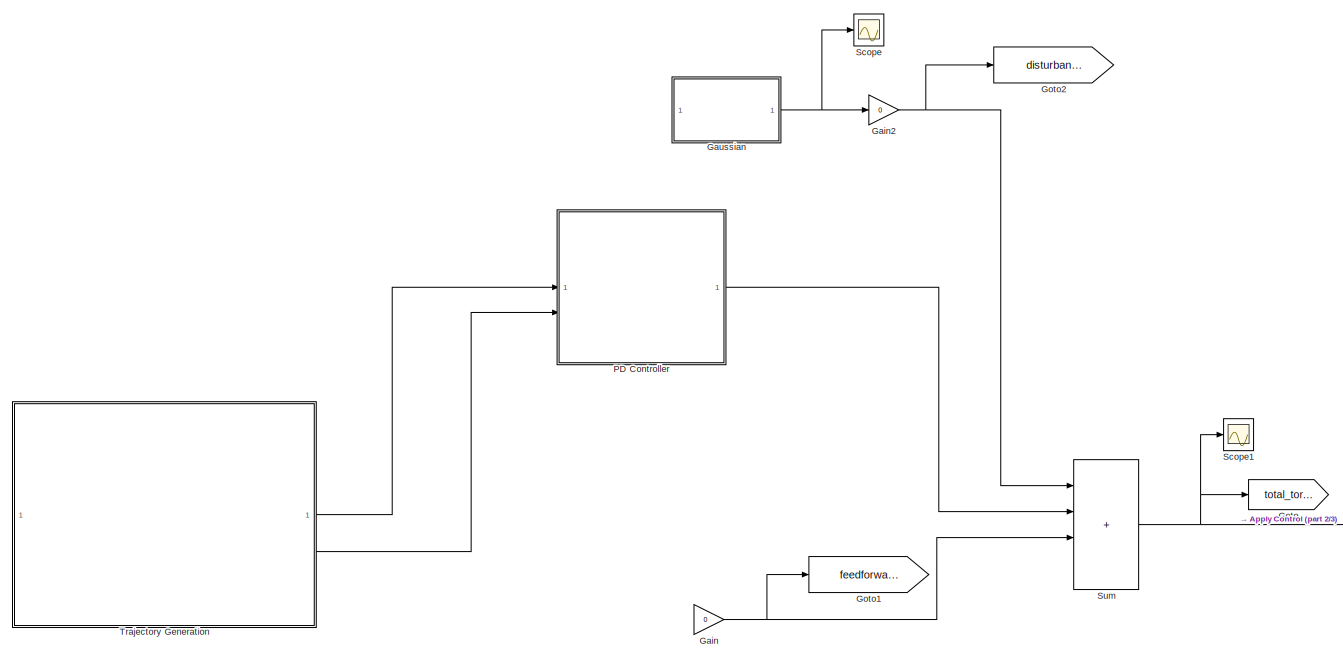
[diagram: root canvas - part 1/3, middle left region]
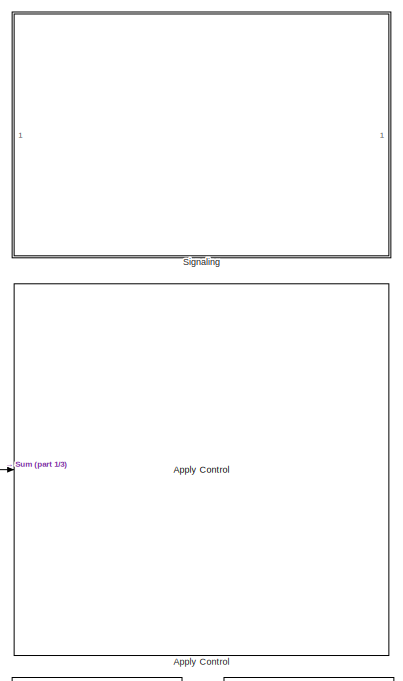
[diagram: root canvas - part 2/3, middle right region]
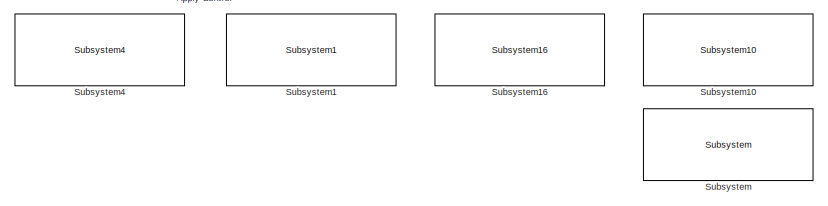
[diagram: root canvas - part 3/3, bottom right region]
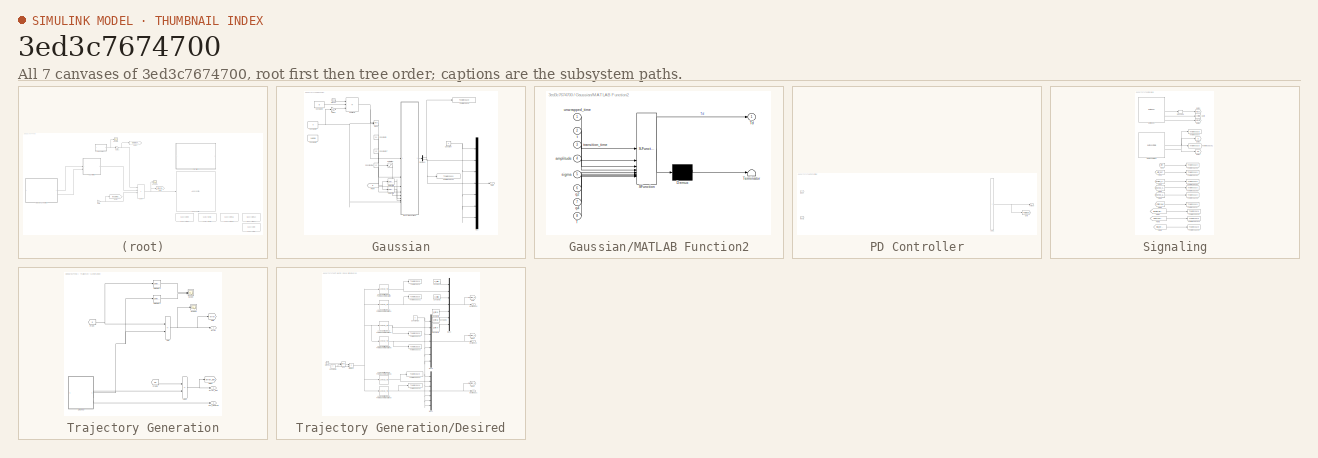
[diagram: thumbnail index - all 7 canvases of the model, root first then tree order]
MODEL slx_3ed3c7674700
KIND model
CONFIG AbsTol = auto
CONFIG EnableMultiTasking = on
CONFIG FixedStep = 0.001
CONFIG MaxStep = auto
CONFIG MinStep = auto
CONFIG PreLoadFcn = demos_common_configs();\n\ncollision_behavior = ones(1,52)*100;
CONFIG RelTol = 1e-3
CONFIG SampleTimeConstraint = Unconstrained
CONFIG SolverName = FixedStepDiscrete
CONFIG StartTime = 0.0
CONFIG StopTime = inf
BLOCK [Reference] Apply Control  REF=franka_simulink_library/Apply Control
  SourceBlock = franka_simulink_library/Apply Control
  UserDataPersistent = on
BLOCK [Gain] Gain
  Gain = 0
BLOCK [Gain] Gain2
  Gain = 0
BLOCK [SubSystem] Gaussian
BLOCK [Clock] Gaussian/Clock1
BLOCK [Constant] Gaussian/Constant
  Value = 0
BLOCK [Constant] Gaussian/Constant1
  Value = 50
BLOCK [Constant] Gaussian/Constant17
  Value = 15
BLOCK [Constant] Gaussian/Constant18
  Value = 12
BLOCK [Constant] Gaussian/Constant2
  Value = 0
BLOCK [Constant] Gaussian/Constant8
  Value = T
BLOCK [Constant] Gaussian/Constant9
  Value = 1.4838
BLOCK [Demux] Gaussian/Demux1
  Outputs = 2
BLOCK [From] Gaussian/From7
  GotoTag = q
  TagVisibility = global
BLOCK [Gain] Gaussian/Gain3
  Gain = 0.5
BLOCK [SubSystem] Gaussian/MATLAB Function2
  ErrorFcn = Stateflow.Translate.translate
  PermitHierarchicalResolution = ExplicitOnly
  SFBlockType = MATLAB Function
  TreatAsAtomicUnit = on
BLOCK [Demux] Gaussian/MATLAB Function2/ Demux 
  Outputs = 1
BLOCK [S-Function] Gaussian/MATLAB Function2/ SFunction 
  EnableBusSupport = off
  FunctionName = sf_sfun
  PortCounts = [8 2]
  SFcnIsStateOwnerBlock = off
  SFunctionDeploymentMode = off
  Tag = Stateflow S-Function 24
BLOCK [Terminator] Gaussian/MATLAB Function2/ Terminator 
BLOCK [Inport] Gaussian/MATLAB Function2/T
  Port = 8
BLOCK [Outport] Gaussian/MATLAB Function2/Td
BLOCK [Inport] Gaussian/MATLAB Function2/amplitude
  Port = 4
BLOCK [Inport] Gaussian/MATLAB Function2/q2
  Port = 6
BLOCK [Inport] Gaussian/MATLAB Function2/q4
  Port = 7
BLOCK [Inport] Gaussian/MATLAB Function2/sigma
  Port = 5
BLOCK [Inport] Gaussian/MATLAB Function2/t
  Port = 2
BLOCK [Inport] Gaussian/MATLAB Function2/transition_time
  Port = 3
BLOCK [Inport] Gaussian/MATLAB Function2/unwrapped_time
BLOCK [Math] Gaussian/Mod2
  Operator = mod
BLOCK [Mux] Gaussian/Mux
  DisplayOption = bar
  Inputs = 7
BLOCK [Outport] Gaussian/Out2
BLOCK [Saturate] Gaussian/Saturation
  LowerLimit = 12
  UpperLimit = inf
BLOCK [Selector] Gaussian/Selector3
  IndexOptions = Index vector (dialog)
  Indices = [2]
  InputPortWidth = 7
  OutputSizes = 1
BLOCK [Selector] Gaussian/Selector4
  IndexOptions = Index vector (dialog)
  Indices = [4]
  InputPortWidth = 7
  OutputSizes = 1
BLOCK [Sum] Gaussian/Subtract1
  IconShape = rectangular
  Inputs = +-+
BLOCK [ToWorkspace] Gaussian/To Workspace
  FixptAsFi = on
  MaxDataPoints = inf
  SampleTime = -1
  SaveFormat = Structure With Time
  VariableName = torque_disturbance_2
BLOCK [ToWorkspace] Gaussian/To Workspace1
  FixptAsFi = on
  MaxDataPoints = inf
  SampleTime = -1
  SaveFormat = Structure With Time
  VariableName = torque_disturbance_4
BLOCK [Goto] Goto
  GotoTag = total_torque
  TagVisibility = global
BLOCK [Goto] Goto1
  GotoTag = feedforward_torque
  TagVisibility = global
BLOCK [Goto] Goto2
  GotoTag = disturbance_torque
  TagVisibility = global
BLOCK [SubSystem] PD Controller
BLOCK [Sum] PD Controller/Add1
  IconShape = rectangular
BLOCK [Goto] PD Controller/Goto
  GotoTag = PDtorque
  TagVisibility = global
BLOCK [Inport] PD Controller/Input
BLOCK [Inport] PD Controller/Input1
  Port = 2
BLOCK [Outport] PD Controller/Torque
BLOCK [Scope] Scope
  Floating = off
  NumInputPorts = 1
  ScopeSpecificationString = Simulink.scopes.TimeScopeBlockCfg('CurrentConfiguration', extmgr.ConfigurationSet(extmgr.Configuration('Core','General UI',true),extmgr.Configuration('Core','Source UI',true),extmgr.Configuration('Sources','WiredSimulink',true,'DataLoggingVariableName','ScopeData3'),extmgr.Configuration('Visuals','Time Domain',true,'SerializedDisplays',{struct('MinYLimReal','-0.67295','MaxYLimReal','0.133','YLabel...<+1473ch>
BLOCK [Scope] Scope1
  Floating = off
  NumInputPorts = 1
  ScopeSpecificationString = Simulink.scopes.TimeScopeBlockCfg('CurrentConfiguration', extmgr.ConfigurationSet(extmgr.Configuration('Core','General UI',true),extmgr.Configuration('Core','Source UI',true),extmgr.Configuration('Sources','WiredSimulink',true,'DataLoggingVariableName','ScopeData2'),extmgr.Configuration('Visuals','Time Domain',true,'SerializedDisplays',{struct('MinYLimReal','-0.67295','MaxYLimReal','0.133','YLabel...<+1473ch>
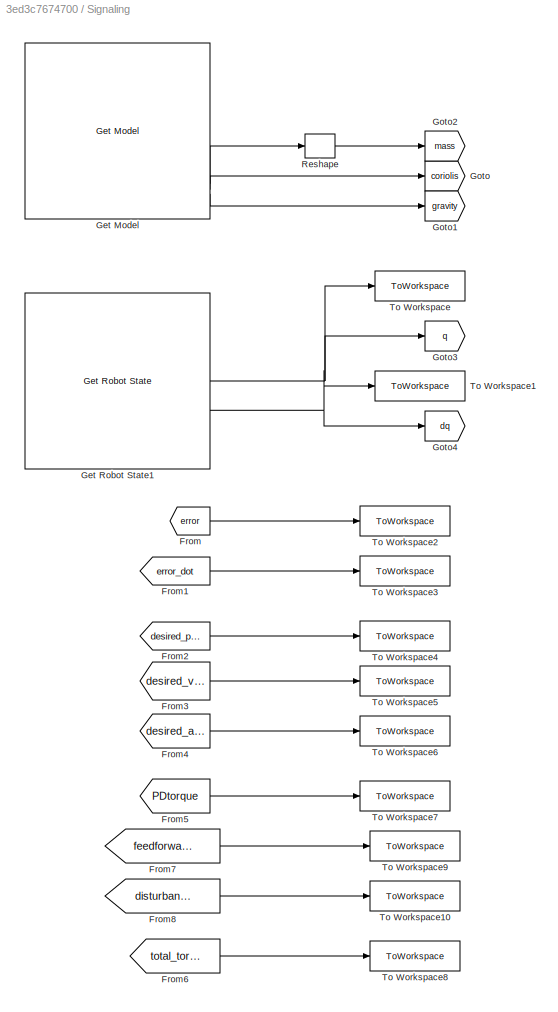
BLOCK [SubSystem] Signaling
BLOCK [From] Signaling/From
  GotoTag = error
  TagVisibility = global
BLOCK [From] Signaling/From1
  GotoTag = error_dot
  TagVisibility = global
BLOCK [From] Signaling/From2
  GotoTag = desired_pos
  TagVisibility = global
BLOCK [From] Signaling/From3
  GotoTag = desired_vel
  TagVisibility = global
BLOCK [From] Signaling/From4
  GotoTag = desired_acc
  TagVisibility = global
BLOCK [From] Signaling/From5
  GotoTag = PDtorque
  TagVisibility = global
BLOCK [From] Signaling/From6
  GotoTag = total_torque
  TagVisibility = global
BLOCK [From] Signaling/From7
  GotoTag = feedforward_torque
  TagVisibility = global
BLOCK [From] Signaling/From8
  GotoTag = disturbance_torque
  TagVisibility = global
BLOCK [Reference] Signaling/Get Model  REF=franka_simulink_library/Get Model
  SourceBlock = franka_simulink_library/Get Model
BLOCK [Reference] Signaling/Get Robot State1  REF=franka_simulink_library/Get Robot State
  SourceBlock = franka_simulink_library/Get Robot State
BLOCK [Goto] Signaling/Goto
  GotoTag = coriolis
  TagVisibility = global
BLOCK [Goto] Signaling/Goto1
  GotoTag = gravity
  TagVisibility = global
BLOCK [Goto] Signaling/Goto2
  GotoTag = mass
  TagVisibility = global
BLOCK [Goto] Signaling/Goto3
  GotoTag = q
  TagVisibility = global
BLOCK [Goto] Signaling/Goto4
  GotoTag = dq
  TagVisibility = global
BLOCK [Reshape] Signaling/Reshape
  OutputDimensionality = Customize
  OutputDimensions = [7,7]
BLOCK [ToWorkspace] Signaling/To Workspace
  FixptAsFi = on
  MaxDataPoints = inf
  SampleTime = -1
  SaveFormat = Structure With Time
  VariableName = q
BLOCK [ToWorkspace] Signaling/To Workspace1
  FixptAsFi = on
  MaxDataPoints = inf
  SampleTime = -1
  SaveFormat = Structure With Time
  VariableName = dq
BLOCK [ToWorkspace] Signaling/To Workspace10
  FixptAsFi = on
  MaxDataPoints = inf
  SampleTime = -1
  SaveFormat = Structure With Time
  VariableName = disturbance_torque
BLOCK [ToWorkspace] Signaling/To Workspace2
  FixptAsFi = on
  MaxDataPoints = inf
  SampleTime = -1
  SaveFormat = Structure With Time
  VariableName = error
BLOCK [ToWorkspace] Signaling/To Workspace3
  FixptAsFi = on
  MaxDataPoints = inf
  SampleTime = -1
  SaveFormat = Structure With Time
  VariableName = error_dot
BLOCK [ToWorkspace] Signaling/To Workspace4
  FixptAsFi = on
  MaxDataPoints = inf
  SampleTime = -1
  SaveFormat = Structure With Time
  VariableName = desired_pos
BLOCK [ToWorkspace] Signaling/To Workspace5
  FixptAsFi = on
  MaxDataPoints = inf
  SampleTime = -1
  SaveFormat = Structure With Time
  VariableName = desired_vel
BLOCK [ToWorkspace] Signaling/To Workspace6
  FixptAsFi = on
  MaxDataPoints = inf
  SampleTime = -1
  SaveFormat = Structure With Time
  VariableName = desired_acc
BLOCK [ToWorkspace] Signaling/To Workspace7
  FixptAsFi = on
  MaxDataPoints = inf
  SampleTime = -1
  SaveFormat = Structure With Time
  VariableName = PDtorque
BLOCK [ToWorkspace] Signaling/To Workspace8
  FixptAsFi = on
  MaxDataPoints = inf
  SampleTime = -1
  SaveFormat = Structure With Time
  VariableName = total_torque
BLOCK [ToWorkspace] Signaling/To Workspace9
  FixptAsFi = on
  MaxDataPoints = inf
  SampleTime = -1
  SaveFormat = Structure With Time
  VariableName = feedforward_torque
BLOCK [Reference] Subsystem  REF=franka_simulink_library_misc/Subsystem
  SourceBlock = franka_simulink_library_misc/Subsystem
BLOCK [Reference] Subsystem1  REF=franka_simulink_library_misc/Subsystem1
  SourceBlock = franka_simulink_library_misc/Subsystem1
BLOCK [Reference] Subsystem10  REF=franka_simulink_library_misc/Subsystem10
  SourceBlock = franka_simulink_library_misc/Subsystem10
BLOCK [Reference] Subsystem16  REF=franka_simulink_library_misc/Subsystem16
  SourceBlock = franka_simulink_library_misc/Subsystem16
BLOCK [Reference] Subsystem4  REF=franka_simulink_library_misc/Subsystem4
  SourceBlock = franka_simulink_library_misc/Subsystem4
BLOCK [Sum] Sum
  IconShape = rectangular
  Inputs = ++++
BLOCK [SubSystem] Trajectory Generation
BLOCK [Sum] Trajectory Generation/Add
  IconShape = rectangular
  Inputs = -+
BLOCK [Sum] Trajectory Generation/Add2
  IconShape = rectangular
  Inputs = -+
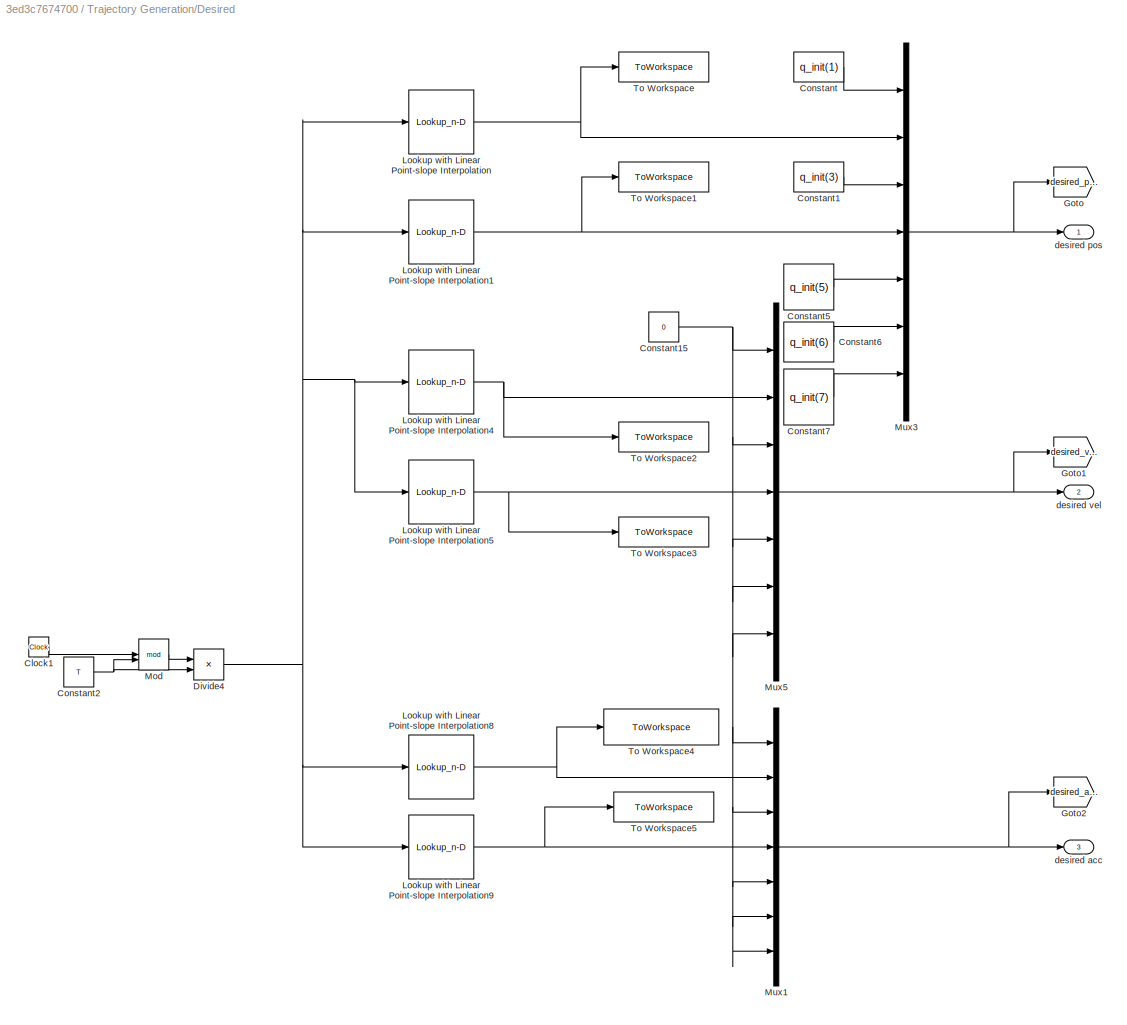
BLOCK [SubSystem] Trajectory Generation/Desired
BLOCK [Clock] Trajectory Generation/Desired/Clock1
BLOCK [Constant] Trajectory Generation/Desired/Constant
  Value = q_init(1)
BLOCK [Constant] Trajectory Generation/Desired/Constant1
  Value = q_init(3)
BLOCK [Constant] Trajectory Generation/Desired/Constant15
  Value = 0
BLOCK [Constant] Trajectory Generation/Desired/Constant2
  Value = T
BLOCK [Constant] Trajectory Generation/Desired/Constant5
  Value = q_init(5)
BLOCK [Constant] Trajectory Generation/Desired/Constant6
  Value = q_init(6)
BLOCK [Constant] Trajectory Generation/Desired/Constant7
  Value = q_init(7)
BLOCK [Product] Trajectory Generation/Desired/Divide4
  Inputs = */
BLOCK [Goto] Trajectory Generation/Desired/Goto
  GotoTag = desired_pos
  TagVisibility = global
BLOCK [Goto] Trajectory Generation/Desired/Goto1
  GotoTag = desired_vel
  TagVisibility = global
BLOCK [Goto] Trajectory Generation/Desired/Goto2
  GotoTag = desired_acc
  TagVisibility = global
BLOCK [Lookup_n-D] Trajectory Generation/Desired/Lookup with Linear Point-slope Interpolation
  BreakpointsForDimension1 = linspace(0,1,length(Q2_desired))
  InputPortMap = u0
  InternalRulePriority = Speed
  NumberOfTableDimensions = 1
  RndMeth = Simplest
  Table = Q2_desired
BLOCK [Lookup_n-D] Trajectory Generation/Desired/Lookup with Linear Point-slope Interpolation1
  BreakpointsForDimension1 = linspace(0,1,length(Q4_desired))
  InputPortMap = u0
  InternalRulePriority = Speed
  NumberOfTableDimensions = 1
  RndMeth = Simplest
  Table = Q4_desired
BLOCK [Lookup_n-D] Trajectory Generation/Desired/Lookup with Linear Point-slope Interpolation4
  BreakpointsForDimension1 = linspace(0,1,length(dQ2_desired))
  InputPortMap = u0
  InternalRulePriority = Speed
  NumberOfTableDimensions = 1
  RndMeth = Simplest
  Table = dQ2_desired
BLOCK [Lookup_n-D] Trajectory Generation/Desired/Lookup with Linear Point-slope Interpolation5
  BreakpointsForDimension1 = linspace(0,1,length(dQ4_desired))
  InputPortMap = u0
  InternalRulePriority = Speed
  NumberOfTableDimensions = 1
  RndMeth = Simplest
  Table = dQ4_desired
BLOCK [Lookup_n-D] Trajectory Generation/Desired/Lookup with Linear Point-slope Interpolation8
  BreakpointsForDimension1 = linspace(0,1,length(ddQ2_desired))
  InputPortMap = u0
  InternalRulePriority = Speed
  NumberOfTableDimensions = 1
  RndMeth = Simplest
  Table = ddQ2_desired
BLOCK [Lookup_n-D] Trajectory Generation/Desired/Lookup with Linear Point-slope Interpolation9
  BreakpointsForDimension1 = linspace(0,1,length(ddQ2_desired))
  InputPortMap = u0
  InternalRulePriority = Speed
  NumberOfTableDimensions = 1
  RndMeth = Simplest
  Table = ddQ4_desired
BLOCK [Math] Trajectory Generation/Desired/Mod
  Operator = mod
BLOCK [Mux] Trajectory Generation/Desired/Mux1
  DisplayOption = bar
  Inputs = 7
BLOCK [Mux] Trajectory Generation/Desired/Mux3
  DisplayOption = bar
  Inputs = 7
BLOCK [Mux] Trajectory Generation/Desired/Mux5
  DisplayOption = bar
  Inputs = 7
BLOCK [ToWorkspace] Trajectory Generation/Desired/To Workspace
  FixptAsFi = on
  MaxDataPoints = inf
  SampleTime = -1
  SaveFormat = Structure With Time
  VariableName = pid_pos_desired_2
BLOCK [ToWorkspace] Trajectory Generation/Desired/To Workspace1
  FixptAsFi = on
  MaxDataPoints = inf
  SampleTime = -1
  SaveFormat = Structure With Time
  VariableName = pid_pos_desired_4
BLOCK [ToWorkspace] Trajectory Generation/Desired/To Workspace2
  FixptAsFi = on
  MaxDataPoints = inf
  SampleTime = -1
  SaveFormat = Structure With Time
  VariableName = pid_vel_desired_2
BLOCK [ToWorkspace] Trajectory Generation/Desired/To Workspace3
  FixptAsFi = on
  MaxDataPoints = inf
  SampleTime = -1
  SaveFormat = Structure With Time
  VariableName = pid_vel_desired_4
BLOCK [ToWorkspace] Trajectory Generation/Desired/To Workspace4
  FixptAsFi = on
  MaxDataPoints = inf
  SampleTime = -1
  SaveFormat = Structure With Time
  VariableName = pid_acc_noshift_2
BLOCK [ToWorkspace] Trajectory Generation/Desired/To Workspace5
  FixptAsFi = on
  MaxDataPoints = inf
  SampleTime = -1
  SaveFormat = Structure With Time
  VariableName = pid_acc_noshift_4
BLOCK [Outport] Trajectory Generation/Desired/desired acc
  NameLocation = top
  Port = 3
BLOCK [Outport] Trajectory Generation/Desired/desired pos
BLOCK [Outport] Trajectory Generation/Desired/desired vel
  Port = 2
BLOCK [From] Trajectory Generation/From
  GotoTag = q
  TagVisibility = global
BLOCK [From] Trajectory Generation/From1
  GotoTag = dq
  TagVisibility = global
BLOCK [Goto] Trajectory Generation/Goto
  GotoTag = error
  TagVisibility = global
BLOCK [Goto] Trajectory Generation/Goto1
  GotoTag = error_dot
  TagVisibility = global
BLOCK [Scope] Trajectory Generation/Scope
  Floating = off
  NumInputPorts = 2
  ScopeSpecificationString = Simulink.scopes.TimeScopeBlockCfg('CurrentConfiguration', extmgr.ConfigurationSet(extmgr.Configuration('Core','General UI',true),extmgr.Configuration('Core','Source UI',true),extmgr.Configuration('Sources','WiredSimulink',true,'DataLoggingVariableName','ScopeData1'),extmgr.Configuration('Visuals','Time Domain',true,'SerializedDisplays',{struct('MinYLimReal','-0.1988','MaxYLimReal','1.78917','YLabe...<+1406ch>
BLOCK [Scope] Trajectory Generation/Scope1
  Floating = off
  NumInputPorts = 1
  ScopeSpecificationString = Simulink.scopes.TimeScopeBlockCfg('CurrentConfiguration', extmgr.ConfigurationSet(extmgr.Configuration('Core','General UI',true),extmgr.Configuration('Core','Source UI',true),extmgr.Configuration('Sources','WiredSimulink',true,'DataLoggingVariableName','ScopeData4'),extmgr.Configuration('Visuals','Time Domain',true,'SerializedDisplays',{struct('MinYLimReal','-0.0505','MaxYLimReal','0.21856','YLabe...<+1388ch>
BLOCK [Selector] Trajectory Generation/Selector1
  IndexOptions = Index vector (dialog)
  Indices = [6]
  InputPortWidth = 7
  OutputSizes = 1
BLOCK [Selector] Trajectory Generation/Selector4
  IndexOptions = Index vector (dialog)
  Indices = [6]
  InputPortWidth = 7
  OutputSizes = 1
BLOCK [Outport] Trajectory Generation/acc_desired
  Port = 3
BLOCK [Outport] Trajectory Generation/error
BLOCK [Outport] Trajectory Generation/error_dot
  Port = 2
NET Gain2:1 -> Goto2:1, Sum:1
NET Gain:1 -> Goto1:1, Sum:3
LINE Gaussian/Clock1:1 -> Gaussian/Subtract1:1
LINE Gaussian/Constant17:1 -> Gaussian/MATLAB Function2:4
LINE Gaussian/Constant18:1 -> Gaussian/Saturation:1
LINE Gaussian/Constant1:1 -> Gaussian/MATLAB Function2:3
LINE Gaussian/Constant2:1 -> Gaussian/Subtract1:2
NET Gaussian/Constant8:1 -> Gaussian/Gain3:1, Gaussian/MATLAB Function2:8, Gaussian/Mod2:2
NET Gaussian/Constant:1 -> Gaussian/Mux:1, Gaussian/Mux:3, Gaussian/Mux:5, Gaussian/Mux:6, Gaussian/Mux:7
NET Gaussian/Demux1:1 -> Gaussian/Mux:2, Gaussian/To Workspace:1
NET Gaussian/Demux1:2 -> Gaussian/Mux:4, Gaussian/To Workspace1:1
NET Gaussian/From7:1 -> Gaussian/Selector3:1, Gaussian/Selector4:1
LINE Gaussian/Gain3:1 -> Gaussian/Subtract1:3
LINE Gaussian/MATLAB Function2:1 -> Gaussian/Demux1:1
LINE Gaussian/Mod2:1 -> Gaussian/MATLAB Function2:2
LINE Gaussian/Mux:1 -> Gaussian/Out2:1
LINE Gaussian/Saturation:1 -> Gaussian/MATLAB Function2:5
LINE Gaussian/Selector3:1 -> Gaussian/MATLAB Function2:6
LINE Gaussian/Selector4:1 -> Gaussian/MATLAB Function2:7
NET Gaussian/Subtract1:1 -> Gaussian/MATLAB Function2:1, Gaussian/Mod2:1
NET Gaussian:1 -> Gain2:1, Scope:1
NET PD Controller/Add1:1 -> PD Controller/Goto:1, PD Controller/Torque:1
LINE PD Controller:1 -> Sum:2
LINE Signaling/From1:1 -> Signaling/To Workspace3:1
LINE Signaling/From2:1 -> Signaling/To Workspace4:1
LINE Signaling/From3:1 -> Signaling/To Workspace5:1
LINE Signaling/From4:1 -> Signaling/To Workspace6:1
LINE Signaling/From5:1 -> Signaling/To Workspace7:1
LINE Signaling/From6:1 -> Signaling/To Workspace8:1
LINE Signaling/From7:1 -> Signaling/To Workspace9:1
LINE Signaling/From8:1 -> Signaling/To Workspace10:1
LINE Signaling/From:1 -> Signaling/To Workspace2:1
LINE Signaling/Get Model:4 -> Signaling/Reshape:1
LINE Signaling/Get Model:5 -> Signaling/Goto:1
LINE Signaling/Get Model:6 -> Signaling/Goto1:1
NET Signaling/Get Robot State1:1 -> Signaling/Goto3:1, Signaling/To Workspace:1
NET Signaling/Get Robot State1:2 -> Signaling/Goto4:1, Signaling/To Workspace1:1
LINE Signaling/Reshape:1 -> Signaling/Goto2:1
NET Sum:1 -> Apply Control:1, Goto:1, Scope1:1
NET Trajectory Generation/Add2:1 -> Trajectory Generation/Goto1:1, Trajectory Generation/error_dot:1
NET Trajectory Generation/Add:1 -> Trajectory Generation/Goto:1, Trajectory Generation/Scope1:1, Trajectory Generation/error:1
LINE Trajectory Generation/Desired/Clock1:1 -> Trajectory Generation/Desired/Mod:1
NET Trajectory Generation/Desired/Constant15:1 -> Trajectory Generation/Desired/Mux1:1, Trajectory Generation/Desired/Mux1:3, Trajectory Generation/Desired/Mux1:5, Trajectory Generation/Desired/Mux1:6, Trajectory Generation/Desired/Mux1:7, Trajectory Generation/Desired/Mux5:1, Trajectory Generation/Desired/Mux5:3, Trajectory Generation/Desired/Mux5:5, Trajectory Generation/Desired/Mux5:6, Trajectory Generation/Desired/Mux5:7
LINE Trajectory Generation/Desired/Constant1:1 -> Trajectory Generation/Desired/Mux3:3
NET Trajectory Generation/Desired/Constant2:1 -> Trajectory Generation/Desired/Divide4:2, Trajectory Generation/Desired/Mod:2
LINE Trajectory Generation/Desired/Constant5:1 -> Trajectory Generation/Desired/Mux3:5
LINE Trajectory Generation/Desired/Constant6:1 -> Trajectory Generation/Desired/Mux3:6
LINE Trajectory Generation/Desired/Constant7:1 -> Trajectory Generation/Desired/Mux3:7
LINE Trajectory Generation/Desired/Constant:1 -> Trajectory Generation/Desired/Mux3:1
NET Trajectory Generation/Desired/Divide4:1 -> Trajectory Generation/Desired/Lookup with Linear Point-slope Interpolation1:1, Trajectory Generation/Desired/Lookup with Linear Point-slope Interpolation4:1, Trajectory Generation/Desired/Lookup with Linear Point-slope Interpolation5:1, Trajectory Generation/Desired/Lookup with Linear Point-slope Interpolation8:1, Trajectory Generation/Desired/Lookup with Linear Point-slope Interpolation9:1, Trajectory Generation/Desired/Lookup with Linear Point-slope Interpolation:1
NET Trajectory Generation/Desired/Lookup with Linear Point-slope Interpolation1:1 -> Trajectory Generation/Desired/Mux3:4, Trajectory Generation/Desired/To Workspace1:1
NET Trajectory Generation/Desired/Lookup with Linear Point-slope Interpolation4:1 -> Trajectory Generation/Desired/Mux5:2, Trajectory Generation/Desired/To Workspace2:1
NET Trajectory Generation/Desired/Lookup with Linear Point-slope Interpolation5:1 -> Trajectory Generation/Desired/Mux5:4, Trajectory Generation/Desired/To Workspace3:1
NET Trajectory Generation/Desired/Lookup with Linear Point-slope Interpolation8:1 -> Trajectory Generation/Desired/Mux1:2, Trajectory Generation/Desired/To Workspace4:1
NET Trajectory Generation/Desired/Lookup with Linear Point-slope Interpolation9:1 -> Trajectory Generation/Desired/Mux1:4, Trajectory Generation/Desired/To Workspace5:1
NET Trajectory Generation/Desired/Lookup with Linear Point-slope Interpolation:1 -> Trajectory Generation/Desired/Mux3:2, Trajectory Generation/Desired/To Workspace:1
LINE Trajectory Generation/Desired/Mod:1 -> Trajectory Generation/Desired/Divide4:1
NET Trajectory Generation/Desired/Mux1:1 -> Trajectory Generation/Desired/Goto2:1, Trajectory Generation/Desired/desired acc:1
NET Trajectory Generation/Desired/Mux3:1 -> Trajectory Generation/Desired/Goto:1, Trajectory Generation/Desired/desired pos:1
NET Trajectory Generation/Desired/Mux5:1 -> Trajectory Generation/Desired/Goto1:1, Trajectory Generation/Desired/desired vel:1
NET Trajectory Generation/Desired:1 -> Trajectory Generation/Add:2, Trajectory Generation/Selector1:1
LINE Trajectory Generation/Desired:2 -> Trajectory Generation/Add2:2
LINE Trajectory Generation/Desired:3 -> Trajectory Generation/acc_desired:1
LINE Trajectory Generation/From1:1 -> Trajectory Generation/Add2:1
NET Trajectory Generation/From:1 -> Trajectory Generation/Add:1, Trajectory Generation/Selector4:1
LINE Trajectory Generation/Selector1:1 -> Trajectory Generation/Scope:2
LINE Trajectory Generation/Selector4:1 -> Trajectory Generation/Scope:1
LINE Trajectory Generation:1 -> PD Controller:1
LINE Trajectory Generation:2 -> PD Controller:2
note: NET lines group one-source signal fan-out (src -> all destinations, sorted); 1:1 wires keep LINE
CHART Gaussian/MATLAB Function2 states=1 transitions=1
  STATE_LABEL 'eML_blk_kernel()'
  STATE_LABEL 'SCRIPT:\nfunction Td = gaussian_generator(unwrapped_time, t,transition_time, amplitude, sigma, q2, q4, T)\n    gain = 0;\n    l1 = sqrt(0.316^2 + 0.088^2);\n    l2 = sqrt(0.384^2 + 0.088^2);\n    persistent enable\n    if isempty(enable)\n        enable = 0;\n    end\n    \n    if unwrapped_time > T\n        enable = 1;\n        gain = amplitude*(unwrapped_time - T)/(transition_time);\n    end\n    \n    if gain...<+269ch>'
CHART  states=0 transitions=0
